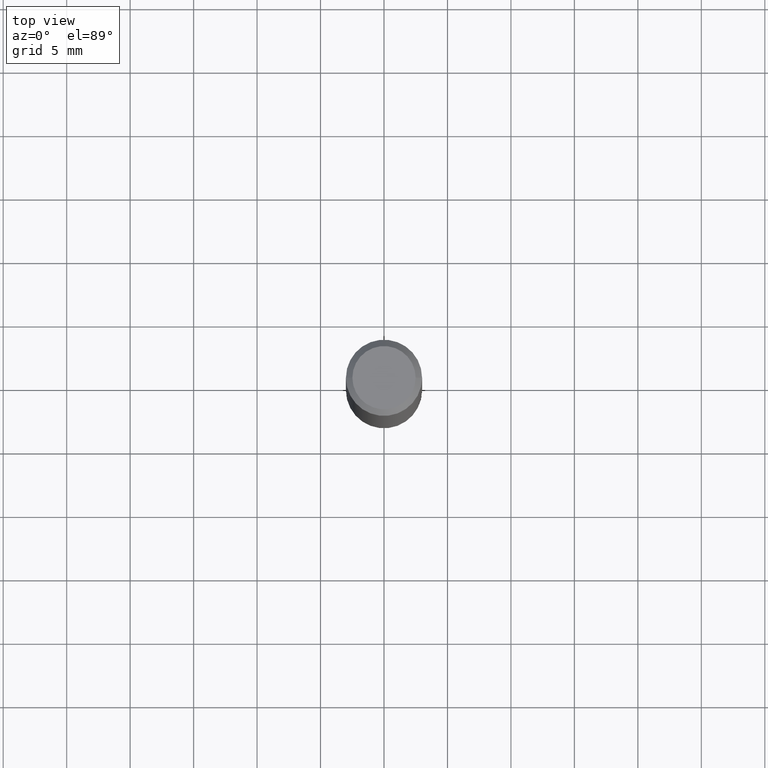
[diagram: clean part render]
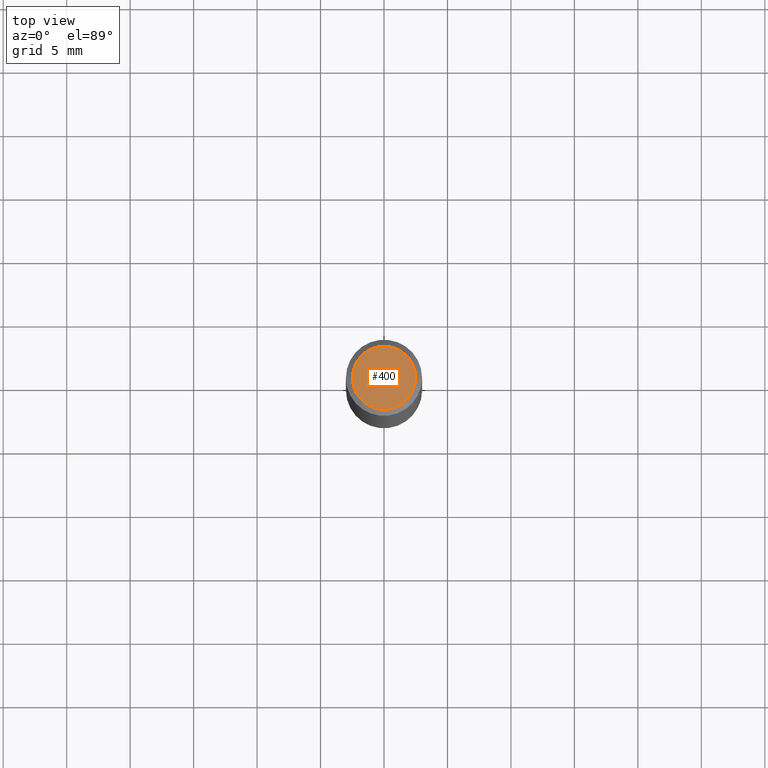
[diagram: same view with one face highlighted and labeled with its STEP entity id]
A machine part, top view. The second image highlights one B-rep face of the part: STEP entity #400.
In plain terms, the highlighted planar face has unit normal (0, -0, -1).
Its self-contained STEP definition (entity closure, byte-faithful):
#43 = AXIS2_PLACEMENT_3D ( 'NONE', #162, #381, #221 ) ;
#68 = FACE_OUTER_BOUND ( 'NONE', #341, .T. ) ;
#87 = CARTESIAN_POINT ( 'NONE',  ( 0.09809999999999970133, -7.765346469475326737E-16, 3.542865366783392114E-16 ) ) ;
#91 = DIRECTION ( 'NONE',  ( 1.000000000000000000, -6.982962677686266711E-15, 4.884890577880263287E-29 ) ) ;
#162 = CARTESIAN_POINT ( 'NONE',  ( 6.850286386810205815E-16, 0.09809999999999970133, -1.653710510013444322E-16 ) ) ;
#167 = CIRCLE ( 'NONE', #266, 0.09809999999999970133 ) ;
#174 = AXIS2_PLACEMENT_3D ( 'NONE', #334, #197, #352 ) ;
#182 = CIRCLE ( 'NONE', #174, 0.09809999999999970133 ) ;
#197 = DIRECTION ( 'NONE',  ( -2.445468806185136597E-29, 3.491481338843145583E-15, 1.000000000000000000 ) ) ;
#213 = ORIENTED_EDGE ( 'NONE', *, *, #296, .T. ) ;
#221 = DIRECTION ( 'NONE',  ( -1.000000000000000000, 6.982962677686265922E-15, -4.876176775795935793E-29 ) ) ;
#247 = DIRECTION ( 'NONE',  ( -2.445468806185136597E-29, 3.491481338843145583E-15, 1.000000000000000000 ) ) ;
#253 = EDGE_CURVE ( 'NONE', #273, #307, #182, .T. ) ;
#261 = CARTESIAN_POINT ( 'NONE',  ( -0.09809999999999970133, 7.199434520694536111E-16, 3.542865366783292027E-16 ) ) ;
#266 = AXIS2_PLACEMENT_3D ( 'NONE', #412, #247, #91 ) ;
#273 = VERTEX_POINT ( 'NONE', #261 ) ;
#296 = EDGE_CURVE ( 'NONE', #307, #273, #167, .T. ) ;
#307 = VERTEX_POINT ( 'NONE', #87 ) ;
#312 = PLANE ( 'NONE',  #43 ) ;
#334 = CARTESIAN_POINT ( 'NONE',  ( -8.663966738982324366E-45, 1.236984831415771234E-30, 3.542865366783341331E-16 ) ) ;
#341 = EDGE_LOOP ( 'NONE', ( #396, #213 ) ) ;
#352 = DIRECTION ( 'NONE',  ( 1.000000000000000000, -6.982962677686266711E-15, 4.884890577880263287E-29 ) ) ;
#381 = DIRECTION ( 'NONE',  ( 2.438088387897960049E-29, -3.491481338843145188E-15, -1.000000000000000000 ) ) ;
#396 = ORIENTED_EDGE ( 'NONE', *, *, #253, .T. ) ;
#400 = ADVANCED_FACE ( 'NONE', ( #68 ), #312, .F. ) ;
#412 = CARTESIAN_POINT ( 'NONE',  ( -8.663966738982324366E-45, 1.236984831415771234E-30, 3.542865366783341331E-16 ) ) ;